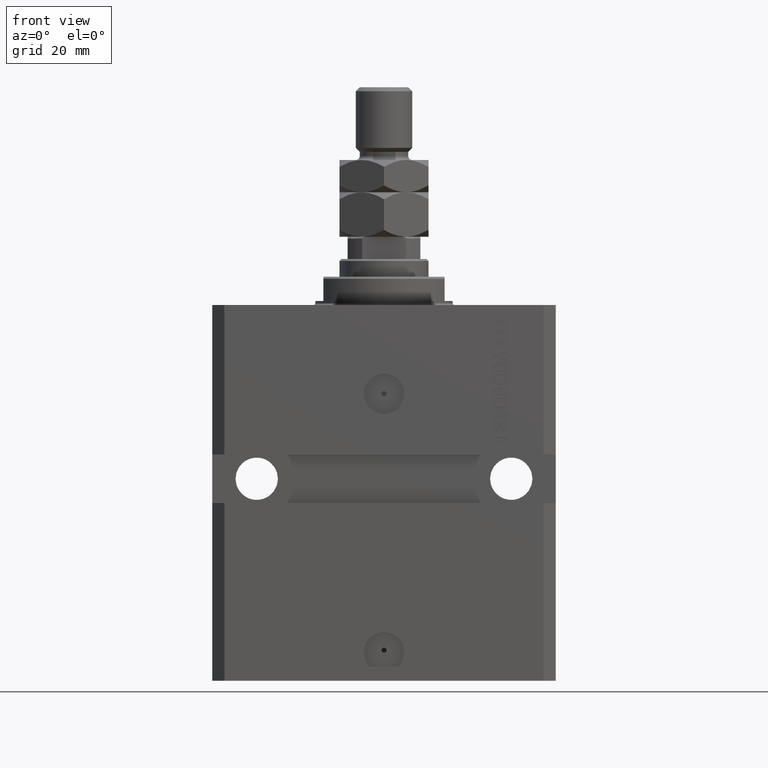
[diagram: clean part render]
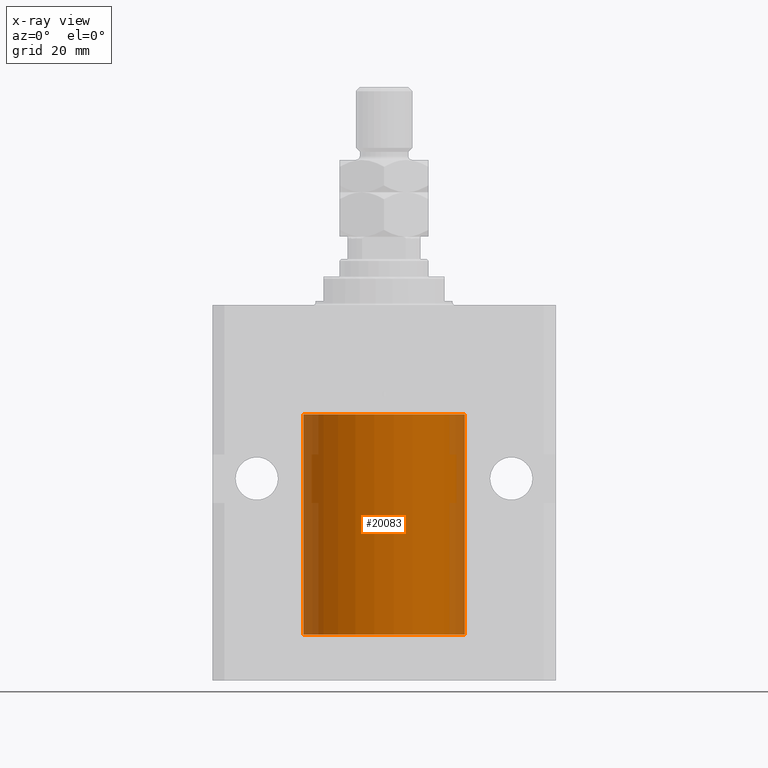
[diagram: x-ray — body ghosted, one internal face saturated and labeled with its STEP entity id]
A machine part, front view, then the same camera in x-ray: the body is ghosted and one INTERNAL B-rep face — a face not visible from any outside direction — is saturated and labeled: STEP entity #20083.
In plain terms, the highlighted cylindrical surface (partial cylindrical patch) has radius 20 mm, axis along (0, 0, 1).
Its self-contained STEP definition (entity closure, byte-faithful):
#92 = CARTESIAN_POINT ( 'NONE',  ( -20.00000000000000000, 2.449293598294706513E-15, -81.60000000000000853 ) ) ;
#1797 = ORIENTED_EDGE ( 'NONE', *, *, #16937, .T. ) ;
#3566 = CARTESIAN_POINT ( 'NONE',  ( 0.000000000000000000, 0.000000000000000000, -81.60000000000000853 ) ) ;
#4522 = DIRECTION ( 'NONE',  ( -0.000000000000000000, -0.000000000000000000, 1.000000000000000000 ) ) ;
#5141 = CARTESIAN_POINT ( 'NONE',  ( -19.99023630310506761, -0.6248620367829604838, -79.16538138329534036 ) ) ;
#6522 = DIRECTION ( 'NONE',  ( -0.000000000000000000, -0.000000000000000000, 1.000000000000000000 ) ) ;
#8377 = ORIENTED_EDGE ( 'NONE', *, *, #44536, .T. ) ;
#8786 = VERTEX_POINT ( 'NONE', #21025 ) ;
#9121 = CARTESIAN_POINT ( 'NONE',  ( -19.99022768983530440, -0.6251375268966040677, -78.83566303088220195 ) ) ;
#9470 = EDGE_CURVE ( 'NONE', #23036, #8786, #39868, .T. ) ;
#10280 = FACE_OUTER_BOUND ( 'NONE', #16502, .T. ) ;
#10303 = CIRCLE ( 'NONE', #16284, 20.00000000000000000 ) ;
#10323 = CARTESIAN_POINT ( 'NONE',  ( 0.000000000000000000, 0.000000000000000000, -27.10000000000000142 ) ) ;
#10552 = DIRECTION ( 'NONE',  ( 0.000000000000000000, 0.000000000000000000, 1.000000000000000000 ) ) ;
#10669 = LINE ( 'NONE', #92, #43233 ) ;
#10792 = LINE ( 'NONE', #18296, #12579 ) ;
#12579 = VECTOR ( 'NONE', #28594, 1000.000000000000000 ) ;
#12678 = ORIENTED_EDGE ( 'NONE', *, *, #9470, .T. ) ;
#15931 = CARTESIAN_POINT ( 'NONE',  ( -19.99765984516762174, -0.3269569594424049930, -78.44291008943298493 ) ) ;
#16284 = AXIS2_PLACEMENT_3D ( 'NONE', #3566, #18576, #18345 ) ;
#16502 = EDGE_LOOP ( 'NONE', ( #45503, #25518, #12678, #1797, #8377, #44532 ) ) ;
#16937 = EDGE_CURVE ( 'NONE', #8786, #45059, #10669, .T. ) ;
#17730 = CARTESIAN_POINT ( 'NONE',  ( -20.00000000000000000, 2.449293598294706513E-15, -81.60000000000000853 ) ) ;
#17945 = DIRECTION ( 'NONE',  ( -0.000000000000000000, -0.000000000000000000, 1.000000000000000000 ) ) ;
#18296 = CARTESIAN_POINT ( 'NONE',  ( 20.00000000000000000, 0.000000000000000000, -81.60000000000000853 ) ) ;
#18345 = DIRECTION ( 'NONE',  ( 1.000000000000000000, 0.000000000000000000, 0.000000000000000000 ) ) ;
#18576 = DIRECTION ( 'NONE',  ( 0.000000000000000000, 0.000000000000000000, 1.000000000000000000 ) ) ;
#19459 = VERTEX_POINT ( 'NONE', #31303 ) ;
#19589 = CARTESIAN_POINT ( 'NONE',  ( -20.00000000000000000, 2.449293598294706513E-15, -27.10000000000000142 ) ) ;
#20083 = ADVANCED_FACE ( 'NONE', ( #10280 ), #21287, .F. ) ;
#21025 = CARTESIAN_POINT ( 'NONE',  ( -20.00000000000000000, -1.124177324826063808E-14, -78.37500000000000000 ) ) ;
#21287 = CYLINDRICAL_SURFACE ( 'NONE', #25008, 20.00000000000000000 ) ;
#23036 = VERTEX_POINT ( 'NONE', #29445 ) ;
#23179 = CARTESIAN_POINT ( 'NONE',  ( -20.00000000000000000, -0.1651542110816439091, -78.37500000000001421 ) ) ;
#24404 = EDGE_CURVE ( 'NONE', #45977, #19459, #10303, .T. ) ;
#24571 = DIRECTION ( 'NONE',  ( 1.000000000000000000, 0.000000000000000000, 0.000000000000000000 ) ) ;
#24689 = CARTESIAN_POINT ( 'NONE',  ( -20.00000000000000355, -0.1631318982819177366, -79.62500000000015632 ) ) ;
#25008 = AXIS2_PLACEMENT_3D ( 'NONE', #41695, #6522, #24571 ) ;
#25518 = ORIENTED_EDGE ( 'NONE', *, *, #27682, .T. ) ;
#27139 = VERTEX_POINT ( 'NONE', #36225 ) ;
#27682 = EDGE_CURVE ( 'NONE', #45977, #23036, #36629, .T. ) ;
#28209 = CARTESIAN_POINT ( 'NONE',  ( -20.00000000000010303, 3.580159286679549072E-13, -79.62500000000332534 ) ) ;
#28594 = DIRECTION ( 'NONE',  ( -0.000000000000000000, -0.000000000000000000, 1.000000000000000000 ) ) ;
#29313 = AXIS2_PLACEMENT_3D ( 'NONE', #10323, #10552, #42200 ) ;
#29445 = CARTESIAN_POINT ( 'NONE',  ( -20.00000000000010303, 3.580159286679549072E-13, -79.62500000000332534 ) ) ;
#30446 = CARTESIAN_POINT ( 'NONE',  ( -19.99257639367449357, -0.5569510432580352388, -79.32709448625169557 ) ) ;
#30890 = VECTOR ( 'NONE', #4522, 1000.000000000000000 ) ;
#31303 = CARTESIAN_POINT ( 'NONE',  ( 20.00000000000000000, 0.000000000000000000, -81.60000000000000853 ) ) ;
#34550 = CIRCLE ( 'NONE', #29313, 20.00000000000000000 ) ;
#36225 = CARTESIAN_POINT ( 'NONE',  ( 20.00000000000000000, 0.000000000000000000, -27.10000000000000142 ) ) ;
#36629 = LINE ( 'NONE', #40609, #30890 ) ;
#37481 = EDGE_CURVE ( 'NONE', #19459, #27139, #10792, .T. ) ;
#37491 = CARTESIAN_POINT ( 'NONE',  ( -19.99255948581289033, -0.5575529953197770894, -78.67383335671266309 ) ) ;
#37718 = CARTESIAN_POINT ( 'NONE',  ( -20.00000000000000000, -1.124177324826063808E-14, -78.37500000000000000 ) ) ;
#38996 = CARTESIAN_POINT ( 'NONE',  ( -19.99767054355995555, -0.3263099029014857599, -79.55741108240768256 ) ) ;
#39868 = B_SPLINE_CURVE_WITH_KNOTS ( 'NONE', 3,
 ( #28209, #24689, #38996, #30446, #5141, #9121, #37491, #15931, #23179, #37718 ),
 .UNSPECIFIED., .F., .F.,
 ( 4, 2, 2, 2, 4 ),
 ( 0.001954154509844221576, 0.002442582466643782209, 0.002931010423443342408, 0.003419438380242903041, 0.003907866337042463674 ),
 .UNSPECIFIED. ) ;
#40609 = CARTESIAN_POINT ( 'NONE',  ( -20.00000000000000000, 2.449293598294706513E-15, -81.60000000000000853 ) ) ;
#41695 = CARTESIAN_POINT ( 'NONE',  ( 0.000000000000000000, 0.000000000000000000, -81.60000000000000853 ) ) ;
#42200 = DIRECTION ( 'NONE',  ( 1.000000000000000000, 0.000000000000000000, 0.000000000000000000 ) ) ;
#43233 = VECTOR ( 'NONE', #17945, 1000.000000000000000 ) ;
#44532 = ORIENTED_EDGE ( 'NONE', *, *, #37481, .F. ) ;
#44536 = EDGE_CURVE ( 'NONE', #45059, #27139, #34550, .T. ) ;
#45059 = VERTEX_POINT ( 'NONE', #19589 ) ;
#45503 = ORIENTED_EDGE ( 'NONE', *, *, #24404, .F. ) ;
#45977 = VERTEX_POINT ( 'NONE', #17730 ) ;